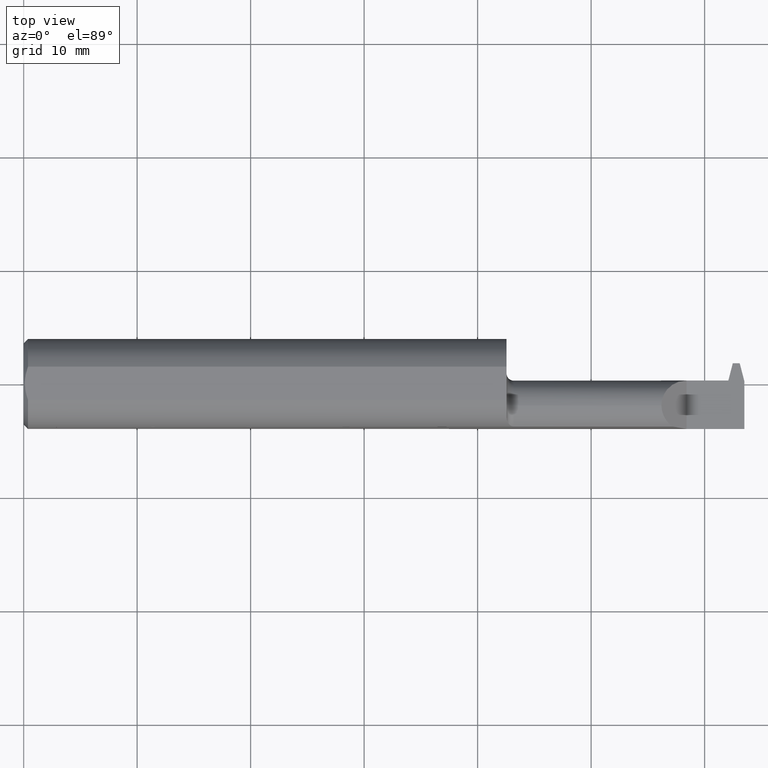
[diagram: clean part render]
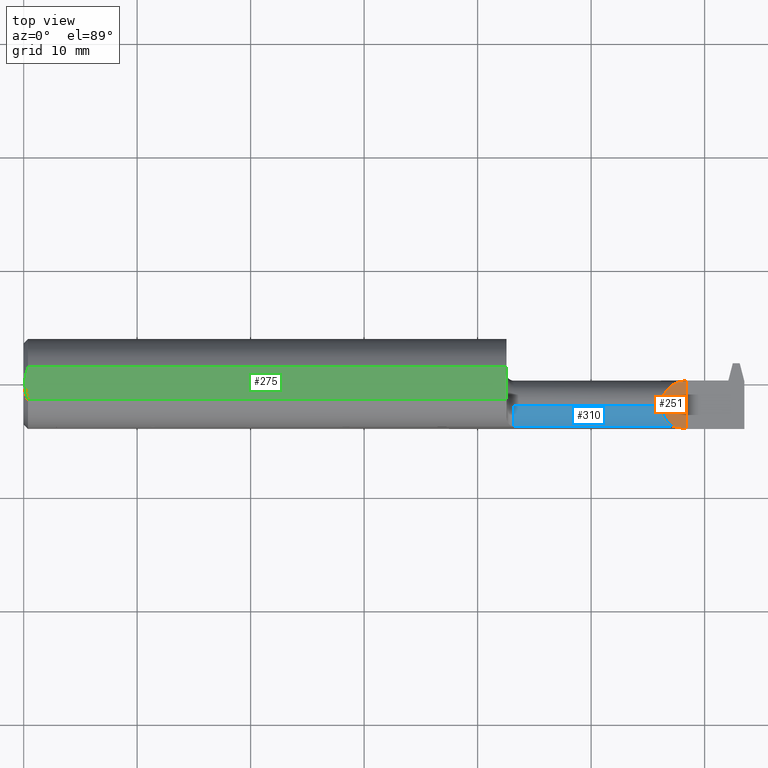
[diagram: same view with three faces highlighted in distinct colors, each labeled with its STEP entity id]
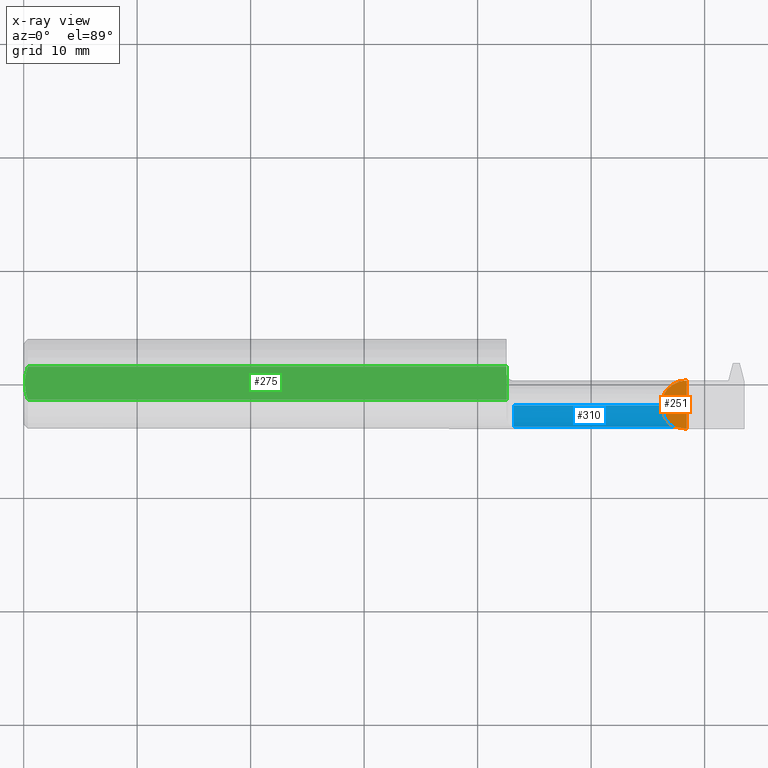
[diagram: x-ray of the same camera — body ghosted, the three highlighted faces saturated]
A machine part, top view with three faces highlighted in distinct colors.
The next image is the same camera in x-ray (body ghosted, the three faces saturated) — at least one of them is partly hidden behind the body in this view.
Their STEP definitions:

[orange] entity #251 — the highlighted planar face has unit normal (-0.7071, 0, -0.7071).
#42 = CARTESIAN_POINT ( 'NONE',  ( 2.300000000000000266, 0.2000000000000000111, -4.286122238378320280E-17 ) ) ;
#47 = EDGE_CURVE ( 'NONE', #345, #243, #584, .T. ) ;
#77 = CARTESIAN_POINT ( 'NONE',  ( 2.251340690561190794, -0.1483222222222220776, 0.04865930943880889675 ) ) ;
#89 = CARTESIAN_POINT ( 'NONE',  ( 2.212499999999999911, -0.07560000000000001441, 0.08750000000000002220 ) ) ;
#101 = DIRECTION ( 'NONE',  ( -0.000000000000000000, 1.000000000000000000, -0.000000000000000000 ) ) ;
#104 =( BOUNDED_CURVE ( )  B_SPLINE_CURVE ( 3, ( #721, #368, #876, #651 ),
 .UNSPECIFIED., .F., .F. ) 
 B_SPLINE_CURVE_WITH_KNOTS ( ( 4, 4 ),
 ( 0.000000000000000000, 0.9811027303930319743 ),
 .UNSPECIFIED. ) 
 CURVE ( )  GEOMETRIC_REPRESENTATION_ITEM ( )  RATIONAL_B_SPLINE_CURVE ( ( 1.000000000000000000, 0.9213821585145209880, 0.9213821585145209880, 1.000000000000000000 ) ) 
 REPRESENTATION_ITEM ( '' )  );
#129 = ORIENTED_EDGE ( 'NONE', *, *, #47, .T. ) ;
#156 = FACE_OUTER_BOUND ( 'NONE', #772, .T. ) ;
#174 = CARTESIAN_POINT ( 'NONE',  ( 2.251340690561190794, -0.1483222222222220776, 0.04865930943880889675 ) ) ;
#199 = CARTESIAN_POINT ( 'NONE',  ( 2.212499999999999911, -0.02434368670764566409, 0.08750000000000006384 ) ) ;
#225 = AXIS2_PLACEMENT_3D ( 'NONE', #587, #570, #871 ) ;
#243 = VERTEX_POINT ( 'NONE', #89 ) ;
#251 = ADVANCED_FACE ( 'NONE', ( #156 ), #308, .F. ) ;
#284 = EDGE_CURVE ( 'NONE', #882, #552, #524, .T. ) ;
#295 = VECTOR ( 'NONE', #101, 39.37007874015748143 ) ;
#308 = PLANE ( 'NONE',  #225 ) ;
#345 = VERTEX_POINT ( 'NONE', #460 ) ;
#368 = CARTESIAN_POINT ( 'NONE',  ( 2.212499999999999911, -0.1054264415332321903, 0.08750000000000003608 ) ) ;
#399 = CARTESIAN_POINT ( 'NONE',  ( 2.300000000000000266, -0.1560999999999999888, -4.286122238378320280E-17 ) ) ;
#460 = CARTESIAN_POINT ( 'NONE',  ( 2.300000000000000266, 0.01190000000000008412, -4.286122238378320280E-17 ) ) ;
#471 = ORIENTED_EDGE ( 'NONE', *, *, #783, .T. ) ;
#509 = ORIENTED_EDGE ( 'NONE', *, *, #671, .T. ) ;
#524 =( BOUNDED_CURVE ( )  B_SPLINE_CURVE ( 3, ( #399, #609, #885, #174 ),
 .UNSPECIFIED., .F., .F. ) 
 B_SPLINE_CURVE_WITH_KNOTS ( ( 4, 4 ),
 ( 4.712388980384687898, 5.029390440538067608 ),
 .UNSPECIFIED. ) 
 CURVE ( )  GEOMETRIC_REPRESENTATION_ITEM ( )  RATIONAL_B_SPLINE_CURVE ( ( 1.000000000000000000, 0.9916433564879546525, 0.9916433564879546525, 1.000000000000000000 ) ) 
 REPRESENTATION_ITEM ( '' )  );
#552 = VERTEX_POINT ( 'NONE', #77 ) ;
#570 = DIRECTION ( 'NONE',  ( -0.7071067811865489050, 0.000000000000000000, -0.7071067811865462405 ) ) ;
#584 =( BOUNDED_CURVE ( )  B_SPLINE_CURVE ( 3, ( #776, #699, #199, #636 ),
 .UNSPECIFIED., .F., .F. ) 
 B_SPLINE_CURVE_WITH_KNOTS ( ( 4, 4 ),
 ( 4.712388980384686121, 6.283185307179586232 ),
 .UNSPECIFIED. ) 
 CURVE ( )  GEOMETRIC_REPRESENTATION_ITEM ( )  RATIONAL_B_SPLINE_CURVE ( ( 1.000000000000000000, 0.8047378541243641603, 0.8047378541243641603, 1.000000000000000000 ) ) 
 REPRESENTATION_ITEM ( '' )  );
#587 = CARTESIAN_POINT ( 'NONE',  ( 2.154900000000000038, 0.1000000000000000056, 0.1450999999999999790 ) ) ;
#609 = CARTESIAN_POINT ( 'NONE',  ( 2.283435914893034990, -0.1561000000000000165, 0.01656408510696423184 ) ) ;
#636 = CARTESIAN_POINT ( 'NONE',  ( 2.212499999999999911, -0.07560000000000001441, 0.08750000000000002220 ) ) ;
#651 = CARTESIAN_POINT ( 'NONE',  ( 2.251340690561190794, -0.1483222222222220776, 0.04865930943880889675 ) ) ;
#671 = EDGE_CURVE ( 'NONE', #243, #552, #104, .T. ) ;
#699 = CARTESIAN_POINT ( 'NONE',  ( 2.248743686707645573, 0.01190000000000020902, 0.05125631329235402073 ) ) ;
#721 = CARTESIAN_POINT ( 'NONE',  ( 2.212499999999999911, -0.07560000000000001441, 0.08750000000000002220 ) ) ;
#728 = CARTESIAN_POINT ( 'NONE',  ( 2.300000000000000266, -0.1560999999999999888, -4.286122238378320280E-17 ) ) ;
#772 = EDGE_LOOP ( 'NONE', ( #471, #129, #509, #833 ) ) ;
#776 = CARTESIAN_POINT ( 'NONE',  ( 2.300000000000000266, 0.01190000000000008412, -4.286122238378320280E-17 ) ) ;
#783 = EDGE_CURVE ( 'NONE', #882, #345, #887, .T. ) ;
#833 = ORIENTED_EDGE ( 'NONE', *, *, #284, .F. ) ;
#871 = DIRECTION ( 'NONE',  ( -0.7071067811865461294, 0.000000000000000000, 0.7071067811865487940 ) ) ;
#876 = CARTESIAN_POINT ( 'NONE',  ( 2.226551603598015294, -0.1317355473876610505, 0.07344839640198407016 ) ) ;
#882 = VERTEX_POINT ( 'NONE', #728 ) ;
#885 = CARTESIAN_POINT ( 'NONE',  ( 2.267079460017583870, -0.1534855594598297235, 0.03292053998241566137 ) ) ;
#887 = LINE ( 'NONE', #42, #295 ) ;

[blue] entity #310 — the highlighted cylindrical surface (edge-blend (fillet) strip) has radius 2.2225 mm, axis along (-1, -0, -0).
#16 = EDGE_CURVE ( 'NONE', #847, #562, #890, .T. ) ;
#29 = CARTESIAN_POINT ( 'NONE',  ( 1.675000000000000044, -0.07560000000000001441, 0.000000000000000000 ) ) ;
#39 = FACE_OUTER_BOUND ( 'NONE', #674, .T. ) ;
#77 = CARTESIAN_POINT ( 'NONE',  ( 2.251340690561190794, -0.1483222222222220776, 0.04865930943880889675 ) ) ;
#81 = CARTESIAN_POINT ( 'NONE',  ( 2.058749999999999858, -0.1483222222222221054, 0.04865930943880881349 ) ) ;
#89 = CARTESIAN_POINT ( 'NONE',  ( 2.212499999999999911, -0.07560000000000001441, 0.08750000000000002220 ) ) ;
#104 =( BOUNDED_CURVE ( )  B_SPLINE_CURVE ( 3, ( #721, #368, #876, #651 ),
 .UNSPECIFIED., .F., .F. ) 
 B_SPLINE_CURVE_WITH_KNOTS ( ( 4, 4 ),
 ( 0.000000000000000000, 0.9811027303930319743 ),
 .UNSPECIFIED. ) 
 CURVE ( )  GEOMETRIC_REPRESENTATION_ITEM ( )  RATIONAL_B_SPLINE_CURVE ( ( 1.000000000000000000, 0.9213821585145209880, 0.9213821585145209880, 1.000000000000000000 ) ) 
 REPRESENTATION_ITEM ( '' )  );
#140 = EDGE_CURVE ( 'NONE', #243, #847, #286, .T. ) ;
#144 = DIRECTION ( 'NONE',  ( -1.000000000000000000, -0.000000000000000000, -0.000000000000000000 ) ) ;
#181 = CYLINDRICAL_SURFACE ( 'NONE', #789, 0.08750000000000002220 ) ;
#243 = VERTEX_POINT ( 'NONE', #89 ) ;
#286 = LINE ( 'NONE', #496, #723 ) ;
#310 = ADVANCED_FACE ( 'NONE', ( #39 ), #181, .T. ) ;
#311 = LINE ( 'NONE', #81, #487 ) ;
#368 = CARTESIAN_POINT ( 'NONE',  ( 2.212499999999999911, -0.1054264415332321903, 0.08750000000000003608 ) ) ;
#387 = DIRECTION ( 'NONE',  ( 0.000000000000000000, 0.000000000000000000, 1.000000000000000000 ) ) ;
#437 = ORIENTED_EDGE ( 'NONE', *, *, #140, .T. ) ;
#443 = ORIENTED_EDGE ( 'NONE', *, *, #569, .T. ) ;
#472 = CARTESIAN_POINT ( 'NONE',  ( 1.699999999999999956, -0.07560000000000001441, 0.08750000000000002220 ) ) ;
#487 = VECTOR ( 'NONE', #585, 39.37007874015748143 ) ;
#496 = CARTESIAN_POINT ( 'NONE',  ( 1.675000000000000044, -0.07560000000000001441, 0.08750000000000002220 ) ) ;
#552 = VERTEX_POINT ( 'NONE', #77 ) ;
#554 = DIRECTION ( 'NONE',  ( 1.000000000000000000, 0.000000000000000000, 0.000000000000000000 ) ) ;
#562 = VERTEX_POINT ( 'NONE', #717 ) ;
#569 = EDGE_CURVE ( 'NONE', #562, #552, #311, .T. ) ;
#585 = DIRECTION ( 'NONE',  ( 1.000000000000000000, 0.000000000000000000, 0.000000000000000000 ) ) ;
#627 = DIRECTION ( 'NONE',  ( 0.000000000000000000, 0.000000000000000000, -1.000000000000000000 ) ) ;
#651 = CARTESIAN_POINT ( 'NONE',  ( 2.251340690561190794, -0.1483222222222220776, 0.04865930943880889675 ) ) ;
#671 = EDGE_CURVE ( 'NONE', #243, #552, #104, .T. ) ;
#674 = EDGE_LOOP ( 'NONE', ( #700, #437, #763, #443 ) ) ;
#680 = DIRECTION ( 'NONE',  ( -1.000000000000000000, -0.000000000000000000, -0.000000000000000000 ) ) ;
#700 = ORIENTED_EDGE ( 'NONE', *, *, #671, .F. ) ;
#717 = CARTESIAN_POINT ( 'NONE',  ( 1.699999999999999956, -0.1483222222222221054, 0.04865930943880881349 ) ) ;
#721 = CARTESIAN_POINT ( 'NONE',  ( 2.212499999999999911, -0.07560000000000001441, 0.08750000000000002220 ) ) ;
#723 = VECTOR ( 'NONE', #144, 39.37007874015748143 ) ;
#763 = ORIENTED_EDGE ( 'NONE', *, *, #16, .T. ) ;
#767 = CARTESIAN_POINT ( 'NONE',  ( 1.699999999999999956, -0.07560000000000001441, 0.000000000000000000 ) ) ;
#789 = AXIS2_PLACEMENT_3D ( 'NONE', #29, #680, #387 ) ;
#842 = AXIS2_PLACEMENT_3D ( 'NONE', #767, #554, #627 ) ;
#847 = VERTEX_POINT ( 'NONE', #472 ) ;
#876 = CARTESIAN_POINT ( 'NONE',  ( 2.226551603598015294, -0.1317355473876610505, 0.07344839640198407016 ) ) ;
#890 = CIRCLE ( 'NONE', #842, 0.08750000000000002220 ) ;

[green] entity #275 — the highlighted planar face has unit normal (-0, 0, -1).
#48 = CARTESIAN_POINT ( 'NONE',  ( 0.003999999999996986001, -0.009882491626910055310, 0.1450999999999999790 ) ) ;
#49 = LINE ( 'NONE', #198, #484 ) ;
#79 = EDGE_LOOP ( 'NONE', ( #367, #583, #567, #350, #453 ) ) ;
#198 = CARTESIAN_POINT ( 'NONE',  ( 1.675000000000000044, 0.1000000000000000056, 0.1450999999999999790 ) ) ;
#209 = CARTESIAN_POINT ( 'NONE',  ( 0.01157928343552837129, 0.04828364633877424428, 0.1451000000000000068 ) ) ;
#220 = DIRECTION ( 'NONE',  ( -1.000000000000000000, -0.000000000000000000, -0.000000000000000000 ) ) ;
#228 = VERTEX_POINT ( 'NONE', #451 ) ;
#265 = DIRECTION ( 'NONE',  ( 0.000000000000000000, -1.000000000000000000, 0.000000000000000000 ) ) ;
#275 = ADVANCED_FACE ( 'NONE', ( #687 ), #744, .F. ) ;
#339 = CARTESIAN_POINT ( 'NONE',  ( 0.01160171645209438947, -0.04834448319362431162, 0.1450999999999999790 ) ) ;
#350 = ORIENTED_EDGE ( 'NONE', *, *, #837, .T. ) ;
#356 = CARTESIAN_POINT ( 'NONE',  ( 0.005017455651907636906, 0.01961184984831247299, 0.1450999999999999790 ) ) ;
#364 = LINE ( 'NONE', #514, #548 ) ;
#367 = ORIENTED_EDGE ( 'NONE', *, *, #480, .F. ) ;
#382 = CARTESIAN_POINT ( 'NONE',  ( 0.000000000000000000, 0.1000000000000000056, 0.1450999999999999790 ) ) ;
#394 = VERTEX_POINT ( 'NONE', #629 ) ;
#402 = CARTESIAN_POINT ( 'NONE',  ( 0.008847869984959717479, -0.03896939155709343294, 0.1450999999999999512 ) ) ;
#412 = EDGE_CURVE ( 'NONE', #228, #851, #505, .T. ) ;
#441 = CARTESIAN_POINT ( 'NONE',  ( 0.003999999999999595893, 1.377970445471898428E-17, 0.1450999999999999790 ) ) ;
#451 = CARTESIAN_POINT ( 'NONE',  ( 0.01499999999999970281, 0.05756040305626777126, 0.1450999999999999790 ) ) ;
#453 = ORIENTED_EDGE ( 'NONE', *, *, #639, .F. ) ;
#480 = EDGE_CURVE ( 'NONE', #730, #394, #49, .T. ) ;
#484 = VECTOR ( 'NONE', #265, 39.37007874015748143 ) ;
#505 = B_SPLINE_CURVE_WITH_KNOTS ( 'NONE', 3,
 ( #553, #209, #843, #356, #623, #551 ),
 .UNSPECIFIED., .F., .F.,
 ( 4, 2, 4 ),
 ( 0.002945485300212740808, 0.003688377603187770627, 0.004431269906162800011 ),
 .UNSPECIFIED. ) ;
#514 = CARTESIAN_POINT ( 'NONE',  ( 2.500000000000000000, 0.05756040305626777126, 0.1450999999999999790 ) ) ;
#520 = CARTESIAN_POINT ( 'NONE',  ( 1.675000000000000044, 0.05756040305626777126, 0.1450999999999999790 ) ) ;
#548 = VECTOR ( 'NONE', #643, 39.37007874015748143 ) ;
#551 = CARTESIAN_POINT ( 'NONE',  ( 0.003999999999999595893, 1.377970445471898428E-17, 0.1450999999999999790 ) ) ;
#553 = CARTESIAN_POINT ( 'NONE',  ( 0.01499999999999970281, 0.05756040305626777126, 0.1450999999999999790 ) ) ;
#555 = VERTEX_POINT ( 'NONE', #792 ) ;
#567 = ORIENTED_EDGE ( 'NONE', *, *, #412, .T. ) ;
#583 = ORIENTED_EDGE ( 'NONE', *, *, #911, .F. ) ;
#595 = AXIS2_PLACEMENT_3D ( 'NONE', #382, #753, #821 ) ;
#621 = CARTESIAN_POINT ( 'NONE',  ( 0.01499999999999970107, -0.05756040305626777126, 0.1450999999999999790 ) ) ;
#623 = CARTESIAN_POINT ( 'NONE',  ( 0.003999999999997044114, 0.009886684785571414960, 0.1450999999999999512 ) ) ;
#629 = CARTESIAN_POINT ( 'NONE',  ( 1.675000000000000044, -0.05756040305626777820, 0.1450999999999999790 ) ) ;
#634 = VECTOR ( 'NONE', #220, 39.37007874015748143 ) ;
#639 = EDGE_CURVE ( 'NONE', #394, #555, #860, .T. ) ;
#643 = DIRECTION ( 'NONE',  ( 1.000000000000000000, 0.000000000000000000, 0.000000000000000000 ) ) ;
#687 = FACE_OUTER_BOUND ( 'NONE', #79, .T. ) ;
#689 = CARTESIAN_POINT ( 'NONE',  ( 0.005042865002153306721, -0.01979865541750971611, 0.1451000000000000068 ) ) ;
#730 = VERTEX_POINT ( 'NONE', #520 ) ;
#744 = PLANE ( 'NONE',  #595 ) ;
#753 = DIRECTION ( 'NONE',  ( -0.000000000000000000, 0.000000000000000000, -1.000000000000000000 ) ) ;
#792 = CARTESIAN_POINT ( 'NONE',  ( 0.01499999999999970107, -0.05756040305626777126, 0.1450999999999999790 ) ) ;
#821 = DIRECTION ( 'NONE',  ( -1.000000000000000000, 0.000000000000000000, 0.000000000000000000 ) ) ;
#830 = CARTESIAN_POINT ( 'NONE',  ( 0.003999999999999595893, 1.377970445471898428E-17, 0.1450999999999999790 ) ) ;
#837 = EDGE_CURVE ( 'NONE', #851, #555, #881, .T. ) ;
#843 = CARTESIAN_POINT ( 'NONE',  ( 0.008799784310863792772, 0.03878477980766483618, 0.1451000000000000068 ) ) ;
#851 = VERTEX_POINT ( 'NONE', #441 ) ;
#855 = CARTESIAN_POINT ( 'NONE',  ( 2.500000000000000000, -0.05756040305626777126, 0.1450999999999999790 ) ) ;
#860 = LINE ( 'NONE', #855, #634 ) ;
#881 = B_SPLINE_CURVE_WITH_KNOTS ( 'NONE', 3,
 ( #830, #48, #689, #402, #339, #621 ),
 .UNSPECIFIED., .F., .F.,
 ( 4, 2, 4 ),
 ( 0.004431269906162800011, 0.005173847132308577804, 0.005916424358454355596 ),
 .UNSPECIFIED. ) ;
#911 = EDGE_CURVE ( 'NONE', #228, #730, #364, .T. ) ;